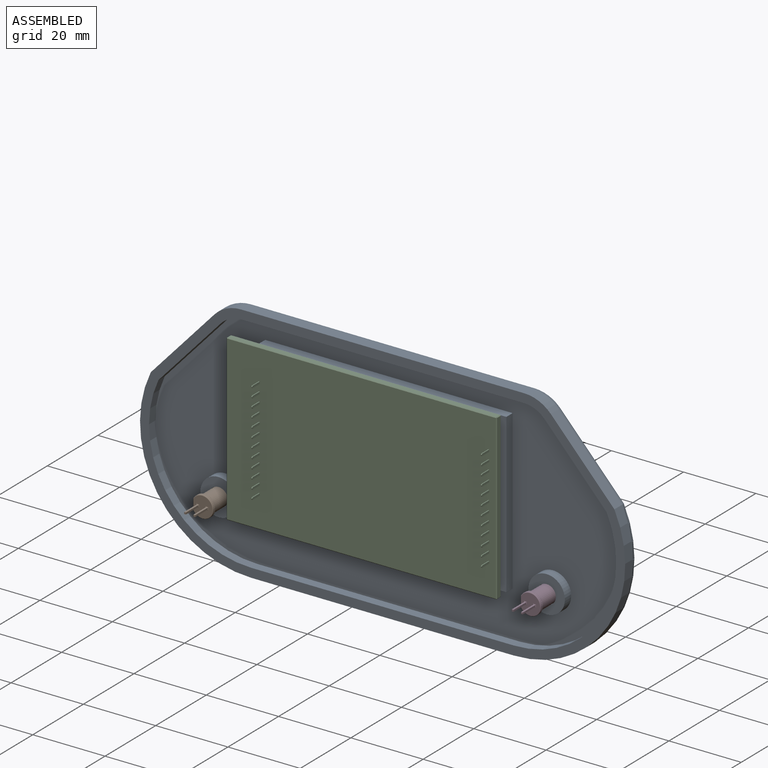
[diagram: assembled view]
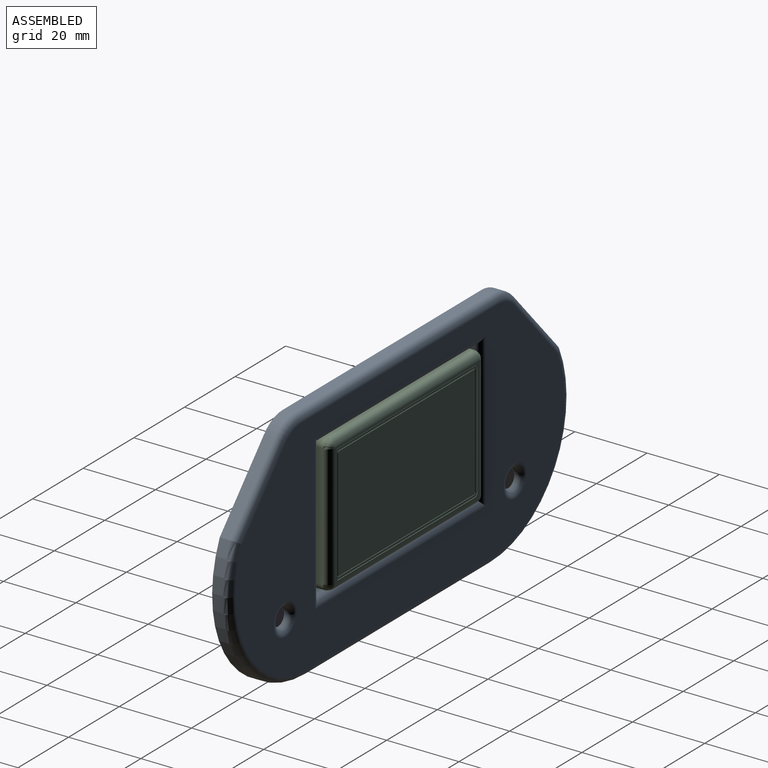
[diagram: assembled view, second angle]
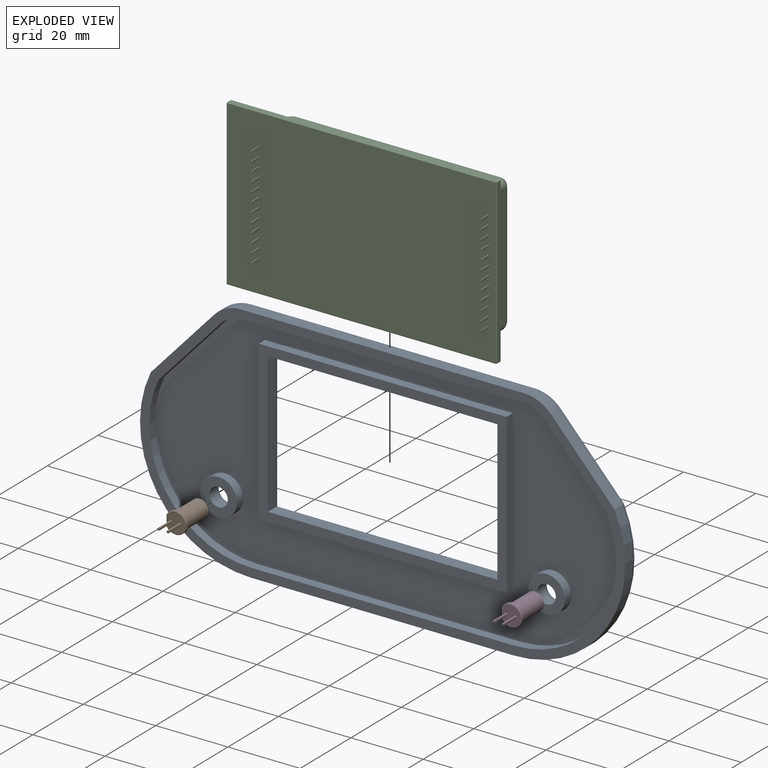
[diagram: exploded view]
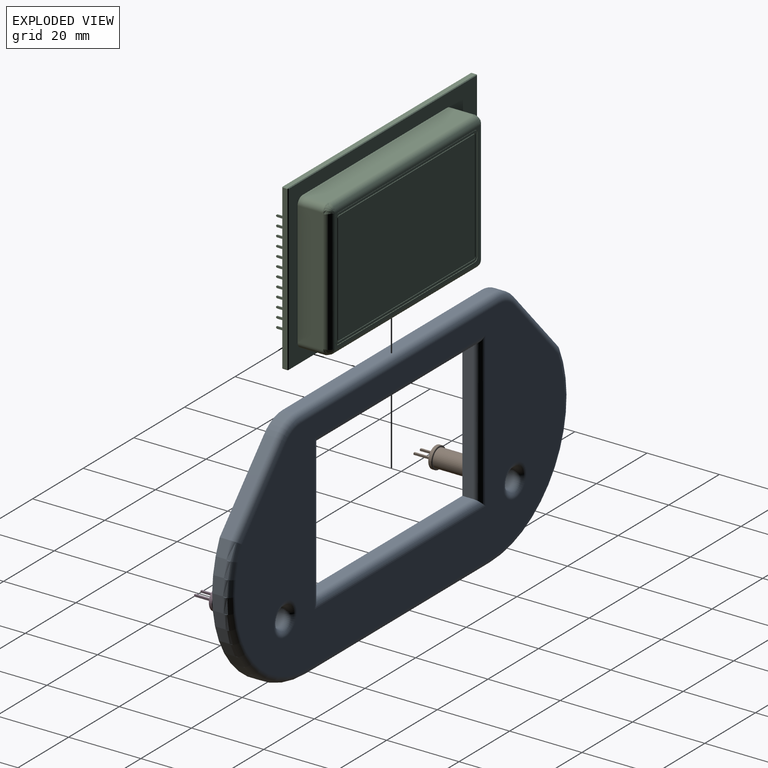
[diagram: exploded view, second angle]
ASSEMBLY  parts=4 mates=3
PART A: 48 faces, bbox 139.3x5x69.7 mm
  f0: plane 134.24x66.35mm, normal (0,-1,0), area 839.3mm2, adj f6,f7,f8,f9,f10,f11,f12,f15
  f1: plane 68.47x43.87mm, normal (0,-1,0), area 536.7mm2, adj f3,f4,f5,f14,f19,f20,f21,f30
  f2: plane 10.1x10.1mm, normal (0,-1,0), area 59.7mm2, adj f16,f32
  f3: plane 63.47x3mm, normal (0,0,1), area 190.4mm2, adj f1,f4,f14,f37
  f4: plane 38.87x3mm, normal (1,0,0), area 116.6mm2, adj f1,f3,f5,f35
  f5: plane 63.47x3mm, normal (0,0,-1), area 190.4mm2, adj f1,f4,f14,f36
  f6: cylinder r=30.75mm len=43.98mm, axis (0,1,0), area 185.9mm2, adj f0,f7,f15,f44
  f7: plane 19.13x17.58mm, normal (0.74,0,0.68), area 78mm2, adj f0,f6,f8,f42
  f8: cylinder r=10mm len=7.36mm, axis (0,1,0), area 24.8mm2, adj f0,f7,f9,f40
  f9: plane 78.36x3mm, normal (0,0,1), area 235.1mm2, adj f0,f8,f10,f39
  f10: cylinder r=10mm len=7.36mm, axis (0,1,0), area 24.8mm2, adj f0,f9,f11,f41
  f11: plane 19.13x17.58mm, normal (-0.74,0,0.68), area 78mm2, adj f0,f10,f12,f43
  f12: cylinder r=30.75mm len=43.98mm, axis (0,1,0), area 185.9mm2, adj f0,f11,f15,f45
  f13: cylinder r=2.55mm len=5.1mm, axis (0,1,0), area 48.1mm2, adj f17,f34
  f14: plane 38.87x3mm, normal (-1,0,0), area 116.6mm2, adj f1,f3,f5,f38
  f15: plane 72.74x3mm, normal (0,0,-1), area 218.2mm2, adj f0,f6,f12,f46
  f16: cylinder r=2.55mm len=5.1mm, axis (0,1,0), area 48.1mm2, adj f2,f47
  f17: plane 10.1x10.1mm, normal (0,-1,0), area 59.7mm2, adj f13,f29
  f18: plane 130.24x62.35mm, normal (0,1,0), area 4179.2mm2, adj f34,f35,f36,f37,f38,f39,f40,f41
  f19: plane 68.47x2.5mm, normal (0,0,-1), area 171.2mm2, adj f1,f20,f30,f33
  f20: plane 43.87x2.5mm, normal (-1,0,0), area 109.7mm2, adj f1,f19,f21,f33
  f21: plane 68.47x2.5mm, normal (0,0,1), area 171.2mm2, adj f1,f20,f30,f33
  f22: cylinder r=28.25mm len=40.07mm, axis (0,1,0), area 141.4mm2, adj f0,f23,f31,f33
  f23: plane 18.85x17.32mm, normal (-0.74,0,-0.68), area 64mm2, adj f0,f22,f24,f33
  f24: cylinder r=7.5mm len=5.52mm, axis (0,1,0), area 15.5mm2, adj f0,f23,f25,f33
  f25: plane 78.36x2.5mm, normal (0,0,-1), area 195.9mm2, adj f0,f24,f26,f33
  f26: cylinder r=7.5mm len=5.52mm, axis (0,1,0), area 15.5mm2, adj f0,f25,f27,f33
  f27: plane 18.85x17.32mm, normal (0.74,0,-0.68), area 64mm2, adj f0,f26,f28,f33
  f28: cylinder r=28.25mm len=40.07mm, axis (0,1,0), area 141.4mm2, adj f0,f27,f31,f33
  f29: cylinder r=5.05mm len=10.1mm, axis (0,1,0), area 79.3mm2, adj f17,f33
  f30: plane 43.87x2.5mm, normal (1,0,0), area 109.7mm2, adj f1,f19,f21,f33
  f31: plane 72.74x2.5mm, normal (0,0,1), area 181.8mm2, adj f0,f22,f28,f33
  f32: cylinder r=5.05mm len=10.1mm, axis (0,1,0), area 79.3mm2, adj f2,f33
  f33: plane 129.24x61.35mm, normal (0,-1,0), area 3873mm2, adj f19,f20,f21,f22,f23,f24,f25,f26
  f34: torus R=4.55mm, axis (0,-1,0), area 64.7mm2, adj f13,f18
  f35: cylinder r=2mm len=42.87mm, axis (0,0,1), area 126.7mm2, adj f4,f18,f36,f37
  f36: cylinder r=2mm len=67.47mm, axis (1,0,0), area 204mm2, adj f5,f18,f35,f38
  f37: cylinder r=2mm len=67.47mm, axis (-1,0,0), area 204mm2, adj f3,f18,f35,f38
  f38: cylinder r=2mm len=42.87mm, axis (0,0,-1), area 126.7mm2, adj f14,f18,f36,f37
  f39: cylinder r=2mm len=78.36mm, axis (-1,0,0), area 246.2mm2, adj f9,f18,f40,f41
  f40: torus R=8mm, axis (0,-1,0), area 24.1mm2, adj f8,f18,f39,f42
  f41: torus R=8mm, axis (0,-1,0), area 24.1mm2, adj f10,f18,f39,f43
  f42: cylinder r=2mm len=20.49mm, axis (-0.68,0,0.74), area 81.3mm2, adj f7,f18,f40,f44
  f43: cylinder r=2mm len=20.49mm, axis (-0.68,0,-0.74), area 81.3mm2, adj f11,f18,f41,f45
  f44: torus R=28.75mm, axis (0,-1,0), area 189.8mm2, adj f6,f18,f42,f46
  f45: torus R=28.75mm, axis (0,-1,0), area 189.8mm2, adj f12,f18,f43,f46
  f46: cylinder r=2mm len=72.74mm, axis (1,0,0), area 228.5mm2, adj f15,f18,f44,f45
  f47: torus R=4.55mm, axis (0,-1,0), area 64.7mm2, adj f16,f18
PART B: 27 faces, bbox 6x6.2x14.6 mm
  f0: plane 5.58x5.29mm, normal (0,0,-1), area 22.4mm2, adj f1,f2,f3,f4,f5,f6,f7,f8
  f1: cylinder r=0.2mm len=0.9mm, axis (1,0,0), area 0.2mm2, adj f0,f2,f3,f11
  f2: cylinder r=0.2mm len=0.9mm, axis (0,1,0), area 0.2mm2, adj f0,f1,f4,f12
  f3: cylinder r=0.2mm len=0.9mm, axis (0,-1,0), area 0.2mm2, adj f0,f1,f4,f13
  f4: cylinder r=0.2mm len=0.9mm, axis (-1,0,0), area 0.2mm2, adj f0,f2,f3,f14
  f5: plane 3.13x1mm, normal (-1,0,0), area 3.1mm2, adj f0,f6,f15,f16,f17
  f6: torus R=2.79mm, axis (0,0,1), area 3.8mm2, adj f0,f5,f15
  f7: cylinder r=0.2mm len=0.9mm, axis (1,0,0), area 0.2mm2, adj f0,f8,f9,f18
  f8: cylinder r=0.2mm len=0.9mm, axis (0,1,0), area 0.2mm2, adj f0,f7,f10,f19
  f9: cylinder r=0.2mm len=0.9mm, axis (0,-1,0), area 0.2mm2, adj f0,f7,f10,f20
  f10: cylinder r=0.2mm len=0.9mm, axis (-1,0,0), area 0.2mm2, adj f0,f8,f9,f21
  f11: plane 4.8x0.5mm, normal (0,1,0), area 2.4mm2, adj f1,f12,f13,f22
  f12: plane 4.8x0.5mm, normal (-1,0,0), area 2.4mm2, adj f2,f11,f14,f22
  f13: plane 4.8x0.5mm, normal (1,0,0), area 2.4mm2, adj f3,f11,f14,f22
  f14: plane 4.8x0.5mm, normal (0,-1,0), area 2.4mm2, adj f4,f12,f13,f22
  f15: cylinder r=2.95mm len=5.9mm, axis (0,0,-1), area 10.4mm2, adj f5,f6,f16
  f16: torus R=2.79mm, axis (0,0,-1), area 3.8mm2, adj f5,f15,f17
  f17: plane 5.58x5.29mm, normal (0,0,1), area 4.3mm2, adj f5,f16,f23
  f18: plane 4.8x0.5mm, normal (0,1,0), area 2.4mm2, adj f7,f19,f20,f24
  f19: plane 4.8x0.5mm, normal (-1,0,0), area 2.4mm2, adj f8,f18,f21,f24
  f20: plane 4.8x0.5mm, normal (1,0,0), area 2.4mm2, adj f9,f18,f21,f24
  f21: plane 4.8x0.5mm, normal (0,-1,0), area 2.4mm2, adj f10,f19,f20,f24
  f22: plane 0.5x0.5mm, normal (0,0,-1), area 0.2mm2, adj f11,f12,f13,f14
  f23: cylinder r=2.5mm len=8.44mm, axis (0,0,-1), area 132.6mm2, adj f17,f25
  f24: plane 0.5x0.5mm, normal (0,0,-1), area 0.2mm2, adj f18,f19,f20,f21
  f25: torus R=2.34mm, axis (0,0,1), area 3.9mm2, adj f23,f26
  f26: plane 4.68x4.68mm, normal (0,0,1), area 17.2mm2, adj f25
PART C: 287 faces, bbox 74.8x45.6x13.8 mm
  f0: plane 74.4x1.4mm, normal (0,1,0), area 104.2mm2, adj f1,f2,f3,f4
  f1: plane 74.6x0.2mm, normal (0,0.71,-0.71), area 21.1mm2, adj f0,f2,f3,f5,f6,f7
  f2: plane 1.6x0.2mm, normal (-0.71,0.71,0), area 0.4mm2, adj f0,f1,f4,f5,f8,f9
  f3: plane 1.6x0.2mm, normal (0.71,0.71,0), area 0.4mm2, adj f0,f1,f4,f7,f10,f11
  f4: plane 74.6x0.2mm, normal (0,0.71,0.71), area 21.1mm2, adj f0,f2,f3,f9,f11,f12
  f5: plane 45.4x0.2mm, normal (-0.71,0,-0.71), area 12.8mm2, adj f1,f2,f6,f8,f13,f14
  f6: plane 74.4x45.2mm, normal (0,0,-1), area 3359.3mm2, adj f1,f5,f7,f13,f15,f16,f17,f18
  f7: plane 45.4x0.2mm, normal (0.71,0,-0.71), area 12.8mm2, adj f1,f3,f6,f10,f13,f111
  f8: plane 45.2x1.4mm, normal (-1,0,0), area 63.3mm2, adj f2,f5,f9,f14
  f9: plane 45.4x0.2mm, normal (-0.71,0,0.71), area 12.8mm2, adj f2,f4,f8,f12,f14,f112
  f10: plane 45.2x1.4mm, normal (1,0,0), area 63.3mm2, adj f3,f7,f11,f111
  f11: plane 45.4x0.2mm, normal (0.71,0,0.71), area 12.8mm2, adj f3,f4,f10,f12,f111,f112
  f12: plane 74.4x45.2mm, normal (0,0,1), area 1048mm2, adj f4,f9,f11,f112,f113,f114,f115,f116
  f13: plane 74.6x0.2mm, normal (0,-0.71,-0.71), area 21.1mm2, adj f5,f6,f7,f14,f111,f121
  f14: plane 1.6x0.2mm, normal (-0.71,-0.71,0), area 0.4mm2, adj f5,f8,f9,f13,f112,f121
  f15: plane 3x0.6mm, normal (-1,0,0), area 1.8mm2, adj f6,f16,f18,f122,f123,f124
  f16: plane 2.78x0.25mm, normal (0,-1,0), area 0.7mm2, adj f6,f15,f17,f122
  f17: plane 3x0.6mm, normal (1,0,0), area 1.8mm2, adj f6,f16,f18,f122,f123,f124
  f18: plane 2.78x0.25mm, normal (0,1,0), area 0.7mm2, adj f6,f15,f17,f124
  f19: plane 3x0.6mm, normal (1,0,0), area 1.8mm2, adj f6,f20,f22,f125,f126,f127
  f20: plane 2.78x0.25mm, normal (0,1,0), area 0.7mm2, adj f6,f19,f21,f125
  f21: plane 3x0.6mm, normal (-1,0,0), area 1.8mm2, adj f6,f20,f22,f125,f126,f127
  f22: plane 2.78x0.25mm, normal (0,-1,0), area 0.7mm2, adj f6,f19,f21,f127
  f23: plane 3x0.6mm, normal (-1,0,0), area 1.8mm2, adj f6,f24,f26,f128,f129,f130
  f24: plane 2.78x0.25mm, normal (0,-1,0), area 0.7mm2, adj f6,f23,f25,f128
  f25: plane 3x0.6mm, normal (1,0,0), area 1.8mm2, adj f6,f24,f26,f128,f129,f130
  f26: plane 2.78x0.25mm, normal (0,1,0), area 0.7mm2, adj f6,f23,f25,f130
  f27: plane 3x0.6mm, normal (-1,0,0), area 1.8mm2, adj f6,f28,f30,f131,f132,f133
  f28: plane 2.78x0.25mm, normal (0,-1,0), area 0.7mm2, adj f6,f27,f29,f131
  f29: plane 3x0.6mm, normal (1,0,0), area 1.8mm2, adj f6,f28,f30,f131,f132,f133
  f30: plane 2.78x0.25mm, normal (0,1,0), area 0.7mm2, adj f6,f27,f29,f133
  f31: plane 3x0.6mm, normal (-1,0,0), area 1.8mm2, adj f6,f32,f34,f134,f135,f136
  f32: plane 2.78x0.25mm, normal (0,-1,0), area 0.7mm2, adj f6,f31,f33,f134
  f33: plane 3x0.6mm, normal (1,0,0), area 1.8mm2, adj f6,f32,f34,f134,f135,f136
  f34: plane 2.78x0.25mm, normal (0,1,0), area 0.7mm2, adj f6,f31,f33,f136
  f35: plane 3x0.6mm, normal (1,0,0), area 1.8mm2, adj f6,f36,f38,f137,f138,f139
  f36: plane 2.78x0.25mm, normal (0,1,0), area 0.7mm2, adj f6,f35,f37,f137
  f37: plane 3x0.6mm, normal (-1,0,0), area 1.8mm2, adj f6,f36,f38,f137,f138,f139
  f38: plane 2.78x0.25mm, normal (0,-1,0), area 0.7mm2, adj f6,f35,f37,f139
  f39: plane 2.78x0.25mm, normal (0,-1,0), area 0.7mm2, adj f6,f40,f42,f140
  f40: plane 3x0.6mm, normal (1,0,0), area 1.8mm2, adj f6,f39,f41,f140,f141,f142
  f41: plane 2.78x0.25mm, normal (0,1,0), area 0.7mm2, adj f6,f40,f42,f141
  f42: plane 3x0.6mm, normal (-1,0,0), area 1.8mm2, adj f6,f39,f41,f140,f141,f142
  f43: plane 3x0.6mm, normal (1,0,0), area 1.8mm2, adj f6,f44,f46,f143,f144,f145
  f44: plane 2.78x0.25mm, normal (0,1,0), area 0.7mm2, adj f6,f43,f45,f143
  f45: plane 3x0.6mm, normal (-1,0,0), area 1.8mm2, adj f6,f44,f46,f143,f144,f145
  f46: plane 2.78x0.25mm, normal (0,-1,0), area 0.7mm2, adj f6,f43,f45,f145
  f47: plane 3x0.6mm, normal (-1,0,0), area 1.8mm2, adj f6,f48,f50,f146,f147,f148
  f48: plane 2.78x0.25mm, normal (0,-1,0), area 0.7mm2, adj f6,f47,f49,f146
  f49: plane 3x0.6mm, normal (1,0,0), area 1.8mm2, adj f6,f48,f50,f146,f147,f148
  f50: plane 2.78x0.25mm, normal (0,1,0), area 0.7mm2, adj f6,f47,f49,f148
  f51: plane 3x0.6mm, normal (-1,0,0), area 1.8mm2, adj f6,f52,f54,f149,f150,f151
  f52: plane 2.78x0.25mm, normal (0,-1,0), area 0.7mm2, adj f6,f51,f53,f149
  f53: plane 3x0.6mm, normal (1,0,0), area 1.8mm2, adj f6,f52,f54,f149,f150,f151
  f54: plane 2.78x0.25mm, normal (0,1,0), area 0.7mm2, adj f6,f51,f53,f151
  f55: plane 3x0.6mm, normal (1,0,0), area 1.8mm2, adj f6,f56,f58,f152,f153,f154
  f56: plane 2.78x0.25mm, normal (0,1,0), area 0.7mm2, adj f6,f55,f57,f152
  f57: plane 3x0.6mm, normal (-1,0,0), area 1.8mm2, adj f6,f56,f58,f152,f153,f154
  f58: plane 2.78x0.25mm, normal (0,-1,0), area 0.7mm2, adj f6,f55,f57,f154
  f59: plane 3x0.6mm, normal (-1,0,0), area 1.8mm2, adj f6,f60,f62,f155,f156,f157
  f60: plane 2.78x0.25mm, normal (0,-1,0), area 0.7mm2, adj f6,f59,f61,f155
  f61: plane 3x0.6mm, normal (1,0,0), area 1.8mm2, adj f6,f60,f62,f155,f156,f157
  f62: plane 2.78x0.25mm, normal (0,1,0), area 0.7mm2, adj f6,f59,f61,f157
  f63: plane 3x0.6mm, normal (-1,0,0), area 1.8mm2, adj f6,f64,f66,f158,f159,f160
  f64: plane 2.78x0.25mm, normal (0,-1,0), area 0.7mm2, adj f6,f63,f65,f158
  f65: plane 3x0.6mm, normal (1,0,0), area 1.8mm2, adj f6,f64,f66,f158,f159,f160
  f66: plane 2.78x0.25mm, normal (0,1,0), area 0.7mm2, adj f6,f63,f65,f160
  f67: plane 3x0.6mm, normal (-1,0,0), area 1.8mm2, adj f6,f68,f70,f161,f162,f163
  f68: plane 2.78x0.25mm, normal (0,-1,0), area 0.7mm2, adj f6,f67,f69,f161
  f69: plane 3x0.6mm, normal (1,0,0), area 1.8mm2, adj f6,f68,f70,f161,f162,f163
  f70: plane 2.78x0.25mm, normal (0,1,0), area 0.7mm2, adj f6,f67,f69,f163
  f71: plane 3x0.6mm, normal (1,0,0), area 1.8mm2, adj f6,f72,f74,f164,f165,f166
  f72: plane 2.78x0.25mm, normal (0,1,0), area 0.7mm2, adj f6,f71,f73,f164
  f73: plane 3x0.6mm, normal (-1,0,0), area 1.8mm2, adj f6,f72,f74,f164,f165,f166
  f74: plane 2.78x0.25mm, normal (0,-1,0), area 0.7mm2, adj f6,f71,f73,f166
  f75: plane 2.78x0.25mm, normal (0,-1,0), area 0.7mm2, adj f6,f76,f78,f167
  f76: plane 3x0.6mm, normal (1,0,0), area 1.8mm2, adj f6,f75,f77,f167,f168,f169
  f77: plane 2.78x0.25mm, normal (0,1,0), area 0.7mm2, adj f6,f76,f78,f168
  f78: plane 3x0.6mm, normal (-1,0,0), area 1.8mm2, adj f6,f75,f77,f167,f168,f169
  f79: plane 3x0.6mm, normal (-1,0,0), area 1.8mm2, adj f6,f80,f82,f170,f171,f172
  f80: plane 2.78x0.25mm, normal (0,-1,0), area 0.7mm2, adj f6,f79,f81,f170
  f81: plane 3x0.6mm, normal (1,0,0), area 1.8mm2, adj f6,f80,f82,f170,f171,f172
  f82: plane 2.78x0.25mm, normal (0,1,0), area 0.7mm2, adj f6,f79,f81,f172
  f83: plane 3x0.6mm, normal (-1,0,0), area 1.8mm2, adj f6,f84,f86,f173,f174,f175
  f84: plane 2.78x0.25mm, normal (0,-1,0), area 0.7mm2, adj f6,f83,f85,f173
  f85: plane 3x0.6mm, normal (1,0,0), area 1.8mm2, adj f6,f84,f86,f173,f174,f175
  f86: plane 2.78x0.25mm, normal (0,1,0), area 0.7mm2, adj f6,f83,f85,f175
  f87: plane 2.78x0.25mm, normal (0,-1,0), area 0.7mm2, adj f6,f88,f90,f176
  f88: plane 3x0.6mm, normal (1,0,0), area 1.8mm2, adj f6,f87,f89,f176,f177,f178
  f89: plane 2.78x0.25mm, normal (0,1,0), area 0.7mm2, adj f6,f88,f90,f177
  f90: plane 3x0.6mm, normal (-1,0,0), area 1.8mm2, adj f6,f87,f89,f176,f177,f178
  f91: plane 3x0.6mm, normal (-1,0,0), area 1.8mm2, adj f6,f92,f94,f179,f180,f181
  f92: plane 2.78x0.25mm, normal (0,-1,0), area 0.7mm2, adj f6,f91,f93,f179
  f93: plane 3x0.6mm, normal (1,0,0), area 1.8mm2, adj f6,f92,f94,f179,f180,f181
  f94: plane 2.78x0.25mm, normal (0,1,0), area 0.7mm2, adj f6,f91,f93,f181
  f95: plane 2.78x0.25mm, normal (0,-1,0), area 0.7mm2, adj f6,f96,f98,f182
  f96: plane 3x0.6mm, normal (1,0,0), area 1.8mm2, adj f6,f95,f97,f182,f183,f184
  f97: plane 2.78x0.25mm, normal (0,1,0), area 0.7mm2, adj f6,f96,f98,f183
  f98: plane 3x0.6mm, normal (-1,0,0), area 1.8mm2, adj f6,f95,f97,f182,f183,f184
  f99: plane 3x0.6mm, normal (1,0,0), area 1.8mm2, adj f6,f100,f102,f185,f186,f187
  f100: plane 2.78x0.25mm, normal (0,1,0), area 0.7mm2, adj f6,f99,f101,f185
  f101: plane 3x0.6mm, normal (-1,0,0), area 1.8mm2, adj f6,f100,f102,f185,f186,f187
  f102: plane 2.78x0.25mm, normal (0,-1,0), area 0.7mm2, adj f6,f99,f101,f187
  f103: plane 2.78x0.25mm, normal (0,-1,0), area 0.7mm2, adj f6,f104,f106,f188
  f104: plane 3x0.6mm, normal (1,0,0), area 1.8mm2, adj f6,f103,f105,f188,f189,f190
  f105: plane 2.78x0.25mm, normal (0,1,0), area 0.7mm2, adj f6,f104,f106,f189
  f106: plane 3x0.6mm, normal (-1,0,0), area 1.8mm2, adj f6,f103,f105,f188,f189,f190
  f107: plane 3x0.6mm, normal (1,0,0), area 1.8mm2, adj f6,f108,f110,f191,f192,f193
  f108: plane 2.78x0.25mm, normal (0,1,0), area 0.7mm2, adj f6,f107,f109,f191
  f109: plane 3x0.6mm, normal (-1,0,0), area 1.8mm2, adj f6,f108,f110,f191,f192,f193
  f110: plane 2.78x0.25mm, normal (0,-1,0), area 0.7mm2, adj f6,f107,f109,f193
  f111: plane 1.6x0.2mm, normal (0.71,-0.71,0), area 0.4mm2, adj f7,f10,f11,f13,f112,f121
  f112: plane 74.6x0.2mm, normal (0,-0.71,0.71), area 21.1mm2, adj f9,f11,f12,f14,f111,f121
  f113: plane 57.2x7mm, normal (0,-1,0), area 400.3mm2, adj f12,f114,f120,f194
  f114: cylinder r=1.9mm len=7mm, axis (0,0,1), area 20.9mm2, adj f12,f113,f115,f195
  f115: plane 34.2x7mm, normal (1,0,0), area 239.3mm2, adj f12,f114,f116,f196
  f116: cylinder r=1.9mm len=7mm, axis (0,0,1), area 20.9mm2, adj f12,f115,f117,f197
  f117: plane 57.2x7mm, normal (0,1,0), area 400.3mm2, adj f12,f116,f118,f198
  f118: cylinder r=1.9mm len=7mm, axis (0,0,1), area 20.9mm2, adj f12,f117,f119,f199
  f119: plane 34.2x7mm, normal (-1,0,0), area 239.3mm2, adj f12,f118,f120,f200
  f120: cylinder r=1.9mm len=7mm, axis (0,0,1), area 20.9mm2, adj f12,f113,f119,f201
  f121: plane 74.4x1.4mm, normal (0,-1,0), area 104.2mm2, adj f13,f14,f111,f112
  f122: plane 0.25x0.22mm, normal (0,-0.71,-0.71), area 0.1mm2, adj f15,f16,f17,f123
  f123: plane 0.25x0.16mm, normal (0,0,-1), area 0mm2, adj f15,f17,f122,f124
  f124: plane 0.25x0.22mm, normal (0,0.71,-0.71), area 0.1mm2, adj f15,f17,f18,f123
  f125: plane 0.25x0.22mm, normal (0,0.71,-0.71), area 0.1mm2, adj f19,f20,f21,f126
  f126: plane 0.25x0.16mm, normal (0,0,-1), area 0mm2, adj f19,f21,f125,f127
  f127: plane 0.25x0.22mm, normal (0,-0.71,-0.71), area 0.1mm2, adj f19,f21,f22,f126
  f128: plane 0.25x0.22mm, normal (0,-0.71,-0.71), area 0.1mm2, adj f23,f24,f25,f129
  f129: plane 0.25x0.16mm, normal (0,0,-1), area 0mm2, adj f23,f25,f128,f130
  f130: plane 0.25x0.22mm, normal (0,0.71,-0.71), area 0.1mm2, adj f23,f25,f26,f129
  f131: plane 0.25x0.22mm, normal (0,-0.71,-0.71), area 0.1mm2, adj f27,f28,f29,f132
  f132: plane 0.25x0.16mm, normal (0,0,-1), area 0mm2, adj f27,f29,f131,f133
  f133: plane 0.25x0.22mm, normal (0,0.71,-0.71), area 0.1mm2, adj f27,f29,f30,f132
  f134: plane 0.25x0.22mm, normal (0,-0.71,-0.71), area 0.1mm2, adj f31,f32,f33,f135
  f135: plane 0.25x0.16mm, normal (0,0,-1), area 0mm2, adj f31,f33,f134,f136
  f136: plane 0.25x0.22mm, normal (0,0.71,-0.71), area 0.1mm2, adj f31,f33,f34,f135
  f137: plane 0.25x0.22mm, normal (0,0.71,-0.71), area 0.1mm2, adj f35,f36,f37,f138
  f138: plane 0.25x0.16mm, normal (0,0,-1), area 0mm2, adj f35,f37,f137,f139
  f139: plane 0.25x0.22mm, normal (0,-0.71,-0.71), area 0.1mm2, adj f35,f37,f38,f138
  f140: plane 0.25x0.22mm, normal (0,-0.71,-0.71), area 0.1mm2, adj f39,f40,f42,f142
  f141: plane 0.25x0.22mm, normal (0,0.71,-0.71), area 0.1mm2, adj f40,f41,f42,f142
  f142: plane 0.25x0.16mm, normal (0,0,-1), area 0mm2, adj f40,f42,f140,f141
  f143: plane 0.25x0.22mm, normal (0,0.71,-0.71), area 0.1mm2, adj f43,f44,f45,f144
  f144: plane 0.25x0.16mm, normal (0,0,-1), area 0mm2, adj f43,f45,f143,f145
  f145: plane 0.25x0.22mm, normal (0,-0.71,-0.71), area 0.1mm2, adj f43,f45,f46,f144
  f146: plane 0.25x0.22mm, normal (0,-0.71,-0.71), area 0.1mm2, adj f47,f48,f49,f147
  f147: plane 0.25x0.16mm, normal (0,0,-1), area 0mm2, adj f47,f49,f146,f148
  f148: plane 0.25x0.22mm, normal (0,0.71,-0.71), area 0.1mm2, adj f47,f49,f50,f147
  f149: plane 0.25x0.22mm, normal (0,-0.71,-0.71), area 0.1mm2, adj f51,f52,f53,f150
  f150: plane 0.25x0.16mm, normal (0,0,-1), area 0mm2, adj f51,f53,f149,f151
  f151: plane 0.25x0.22mm, normal (0,0.71,-0.71), area 0.1mm2, adj f51,f53,f54,f150
  f152: plane 0.25x0.22mm, normal (0,0.71,-0.71), area 0.1mm2, adj f55,f56,f57,f153
  f153: plane 0.25x0.16mm, normal (0,0,-1), area 0mm2, adj f55,f57,f152,f154
  f154: plane 0.25x0.22mm, normal (0,-0.71,-0.71), area 0.1mm2, adj f55,f57,f58,f153
  f155: plane 0.25x0.22mm, normal (0,-0.71,-0.71), area 0.1mm2, adj f59,f60,f61,f156
  f156: plane 0.25x0.16mm, normal (0,0,-1), area 0mm2, adj f59,f61,f155,f157
  f157: plane 0.25x0.22mm, normal (0,0.71,-0.71), area 0.1mm2, adj f59,f61,f62,f156
  f158: plane 0.25x0.22mm, normal (0,-0.71,-0.71), area 0.1mm2, adj f63,f64,f65,f159
  f159: plane 0.25x0.16mm, normal (0,0,-1), area 0mm2, adj f63,f65,f158,f160
  f160: plane 0.25x0.22mm, normal (0,0.71,-0.71), area 0.1mm2, adj f63,f65,f66,f159
  f161: plane 0.25x0.22mm, normal (0,-0.71,-0.71), area 0.1mm2, adj f67,f68,f69,f162
  f162: plane 0.25x0.16mm, normal (0,0,-1), area 0mm2, adj f67,f69,f161,f163
  f163: plane 0.25x0.22mm, normal (0,0.71,-0.71), area 0.1mm2, adj f67,f69,f70,f162
  f164: plane 0.25x0.22mm, normal (0,0.71,-0.71), area 0.1mm2, adj f71,f72,f73,f165
  f165: plane 0.25x0.16mm, normal (0,0,-1), area 0mm2, adj f71,f73,f164,f166
  f166: plane 0.25x0.22mm, normal (0,-0.71,-0.71), area 0.1mm2, adj f71,f73,f74,f165
  f167: plane 0.25x0.22mm, normal (0,-0.71,-0.71), area 0.1mm2, adj f75,f76,f78,f169
  f168: plane 0.25x0.22mm, normal (0,0.71,-0.71), area 0.1mm2, adj f76,f77,f78,f169
  f169: plane 0.25x0.16mm, normal (0,0,-1), area 0mm2, adj f76,f78,f167,f168
  f170: plane 0.25x0.22mm, normal (0,-0.71,-0.71), area 0.1mm2, adj f79,f80,f81,f171
  f171: plane 0.25x0.16mm, normal (0,0,-1), area 0mm2, adj f79,f81,f170,f172
  f172: plane 0.25x0.22mm, normal (0,0.71,-0.71), area 0.1mm2, adj f79,f81,f82,f171
  f173: plane 0.25x0.22mm, normal (0,-0.71,-0.71), area 0.1mm2, adj f83,f84,f85,f174
  f174: plane 0.25x0.16mm, normal (0,0,-1), area 0mm2, adj f83,f85,f173,f175
  f175: plane 0.25x0.22mm, normal (0,0.71,-0.71), area 0.1mm2, adj f83,f85,f86,f174
  f176: plane 0.25x0.22mm, normal (0,-0.71,-0.71), area 0.1mm2, adj f87,f88,f90,f178
  f177: plane 0.25x0.22mm, normal (0,0.71,-0.71), area 0.1mm2, adj f88,f89,f90,f178
  f178: plane 0.25x0.16mm, normal (0,0,-1), area 0mm2, adj f88,f90,f176,f177
  f179: plane 0.25x0.22mm, normal (0,-0.71,-0.71), area 0.1mm2, adj f91,f92,f93,f180
  f180: plane 0.25x0.16mm, normal (0,0,-1), area 0mm2, adj f91,f93,f179,f181
  f181: plane 0.25x0.22mm, normal (0,0.71,-0.71), area 0.1mm2, adj f91,f93,f94,f180
  f182: plane 0.25x0.22mm, normal (0,-0.71,-0.71), area 0.1mm2, adj f95,f96,f98,f184
  f183: plane 0.25x0.22mm, normal (0,0.71,-0.71), area 0.1mm2, adj f96,f97,f98,f184
  f184: plane 0.25x0.16mm, normal (0,0,-1), area 0mm2, adj f96,f98,f182,f183
  f185: plane 0.25x0.22mm, normal (0,0.71,-0.71), area 0.1mm2, adj f99,f100,f101,f186
  f186: plane 0.25x0.16mm, normal (0,0,-1), area 0mm2, adj f99,f101,f185,f187
  f187: plane 0.25x0.22mm, normal (0,-0.71,-0.71), area 0.1mm2, adj f99,f101,f102,f186
  f188: plane 0.25x0.22mm, normal (0,-0.71,-0.71), area 0.1mm2, adj f103,f104,f106,f190
  f189: plane 0.25x0.22mm, normal (0,0.71,-0.71), area 0.1mm2, adj f104,f105,f106,f190
  f190: plane 0.25x0.16mm, normal (0,0,-1), area 0mm2, adj f104,f106,f188,f189
  f191: plane 0.25x0.22mm, normal (0,0.71,-0.71), area 0.1mm2, adj f107,f108,f109,f192
  f192: plane 0.25x0.16mm, normal (0,0,-1), area 0mm2, adj f107,f109,f191,f193
  f193: plane 0.25x0.22mm, normal (0,-0.71,-0.71), area 0.1mm2, adj f107,f109,f110,f192
  f194: cylinder r=2mm len=57.2mm, axis (-1,0,0), area 179.4mm2, adj f113,f195,f201,f202
  f195: bspline ~2.12x2.12mm, area 6.2mm2, adj f114,f194,f196
  f196: cylinder r=2mm len=34.2mm, axis (0,-1,0), area 107.1mm2, adj f115,f195,f197,f202
  f197: bspline ~2.12x2.12mm, area 6.2mm2, adj f116,f196,f198
  f198: cylinder r=2mm len=57.2mm, axis (1,0,0), area 179.4mm2, adj f117,f197,f199,f202
  f199: bspline ~2.12x2.12mm, area 6.2mm2, adj f118,f198,f200
  f200: cylinder r=2mm len=34.2mm, axis (0,1,0), area 107.1mm2, adj f119,f199,f201,f202
  f201: bspline ~2.12x2.12mm, area 6.2mm2, adj f120,f194,f200
  f202: plane 57x34mm, normal (0,0,1), area 90.9mm2, adj f194,f196,f198,f200,f203,f204,f205,f206
  f203: plane 54x0.5mm, normal (0,-1,0), area 27mm2, adj f202,f204,f205,f211
  f204: cylinder r=1mm len=1mm, axis (0,0,-1), area 0.8mm2, adj f202,f203,f206,f211
  f205: cylinder r=1mm len=1mm, axis (0,0,-1), area 0.8mm2, adj f202,f203,f207,f211
  f206: plane 31x0.5mm, normal (1,0,0), area 15.5mm2, adj f202,f204,f208,f211
  f207: plane 31x0.5mm, normal (-1,0,0), area 15.5mm2, adj f202,f205,f209,f211
  f208: cylinder r=1mm len=1mm, axis (0,0,-1), area 0.8mm2, adj f202,f206,f210,f211
  f209: cylinder r=1mm len=1mm, axis (0,0,-1), area 0.8mm2, adj f202,f207,f210,f211
  f210: plane 54x0.5mm, normal (0,1,0), area 27mm2, adj f202,f208,f209,f211
  f211: plane 56x33mm, normal (0,0,1), area 11.1mm2, adj f203,f204,f205,f206,f207,f208,f209,f210
  f212: cone r=1mm half-angle=45deg, axis (0,0,1), area 0.1mm2, adj f211,f213,f219,f220
  f213: plane 31x0.06mm, normal (-0.71,0,-0.71), area 2.7mm2, adj f211,f212,f214,f221
  f214: cone r=1mm half-angle=45deg, axis (0,0,1), area 0.1mm2, adj f211,f213,f215,f222
  f215: plane 54x0.06mm, normal (0,-0.71,-0.71), area 4.7mm2, adj f211,f214,f216,f223
  f216: cone r=1mm half-angle=45deg, axis (0,0,1), area 0.1mm2, adj f211,f215,f217,f224
  f217: plane 31x0.06mm, normal (0.71,0,-0.71), area 2.7mm2, adj f211,f216,f218,f225
  f218: cone r=1mm half-angle=45deg, axis (0,0,1), area 0.1mm2, adj f211,f217,f219,f226
  f219: plane 54x0.06mm, normal (0,0.71,-0.71), area 4.7mm2, adj f211,f212,f218,f227
  f220: cylinder r=1mm len=1mm, axis (0,0,1), area 0.5mm2, adj f212,f221,f227,f228
  f221: plane 31x0.3mm, normal (-1,0,0), area 9.3mm2, adj f213,f220,f222,f229
  f222: cylinder r=1mm len=1mm, axis (0,0,1), area 0.5mm2, adj f214,f221,f223,f230
  f223: plane 54x0.3mm, normal (0,-1,0), area 16.2mm2, adj f215,f222,f224,f231
  f224: cylinder r=1mm len=1mm, axis (0,0,1), area 0.5mm2, adj f216,f223,f225,f232
  f225: plane 31x0.3mm, normal (1,0,0), area 9.3mm2, adj f217,f224,f226,f233
  f226: cylinder r=1mm len=1mm, axis (0,0,1), area 0.5mm2, adj f218,f225,f227,f234
  f227: plane 54x0.3mm, normal (0,1,0), area 16.2mm2, adj f219,f220,f226,f235
  f228: cone r=1mm half-angle=45deg, axis (0,0,-1), area 0.2mm2, adj f220,f229,f235,f236
  f229: plane 31x0.1mm, normal (-0.71,0,0.71), area 4.4mm2, adj f221,f228,f230,f236
  f230: cone r=1mm half-angle=45deg, axis (0,0,-1), area 0.2mm2, adj f222,f229,f231,f236
  f231: plane 54x0.1mm, normal (0,-0.71,0.71), area 7.6mm2, adj f223,f230,f232,f236
  f232: cone r=1mm half-angle=45deg, axis (0,0,-1), area 0.2mm2, adj f224,f231,f233,f236
  f233: plane 31x0.1mm, normal (0.71,0,0.71), area 4.4mm2, adj f225,f232,f234,f236
  f234: cone r=1mm half-angle=45deg, axis (0,0,-1), area 0.2mm2, adj f226,f233,f235,f236
  f235: plane 54x0.1mm, normal (0,0.71,0.71), area 7.6mm2, adj f227,f228,f234,f236
  f236: plane 55.8x32.8mm, normal (0,0,1), area 104.5mm2, adj f228,f229,f230,f231,f232,f233,f234,f235
  f237: plane 53.4x0.1mm, normal (0,0.71,0.71), area 7.6mm2, adj f236,f238,f239,f245
  f238: cone r=0.5mm half-angle=45deg, axis (0,0,1), area 0.1mm2, adj f236,f237,f240,f246
  f239: cone r=0.5mm half-angle=45deg, axis (0,0,1), area 0.1mm2, adj f236,f237,f241,f247
  f240: plane 30.4x0.1mm, normal (-0.71,0,0.71), area 4.3mm2, adj f236,f238,f242,f248
  f241: plane 30.4x0.1mm, normal (0.71,0,0.71), area 4.3mm2, adj f236,f239,f243,f249
  f242: cone r=0.5mm half-angle=45deg, axis (0,0,1), area 0.1mm2, adj f236,f240,f244,f250
  f243: cone r=0.5mm half-angle=45deg, axis (0,0,1), area 0.1mm2, adj f236,f241,f244,f251
  f244: plane 53.4x0.1mm, normal (0,-0.71,0.71), area 7.6mm2, adj f236,f242,f243,f252
  f245: plane 53.4x0.3mm, normal (0,1,0), area 16mm2, adj f237,f246,f247,f253
  f246: cylinder r=0.5mm len=0.5mm, axis (0,0,-1), area 0.2mm2, adj f238,f245,f248,f254
  f247: cylinder r=0.5mm len=0.5mm, axis (0,0,-1), area 0.2mm2, adj f239,f245,f249,f255
  f248: plane 30.4x0.3mm, normal (-1,0,0), area 9.1mm2, adj f240,f246,f250,f256
  f249: plane 30.4x0.3mm, normal (1,0,0), area 9.1mm2, adj f241,f247,f251,f257
  f250: cylinder r=0.5mm len=0.5mm, axis (0,0,-1), area 0.2mm2, adj f242,f248,f252,f258
  f251: cylinder r=0.5mm len=0.5mm, axis (0,0,-1), area 0.2mm2, adj f243,f249,f252,f259
  f252: plane 53.4x0.3mm, normal (0,-1,0), area 16mm2, adj f244,f250,f251,f260
  f253: plane 53.4x0.06mm, normal (0,0.71,-0.71), area 4.7mm2, adj f245,f254,f255,f261
  f254: cone r=0.5mm half-angle=45deg, axis (0,0,-1), area 0.1mm2, adj f246,f253,f256,f261
  f255: cone r=0.5mm half-angle=45deg, axis (0,0,-1), area 0.1mm2, adj f247,f253,f257,f261
  f256: plane 30.4x0.06mm, normal (-0.71,0,-0.71), area 2.7mm2, adj f248,f254,f258,f261
  f257: plane 30.4x0.06mm, normal (0.71,0,-0.71), area 2.7mm2, adj f249,f255,f259,f261
  f258: cone r=0.5mm half-angle=45deg, axis (0,0,-1), area 0.1mm2, adj f250,f256,f260,f261
  f259: cone r=0.5mm half-angle=45deg, axis (0,0,-1), area 0.1mm2, adj f251,f257,f260,f261
  f260: plane 53.4x0.06mm, normal (0,-0.71,-0.71), area 4.7mm2, adj f252,f258,f259,f261
  f261: plane 54.52x31.52mm, normal (0,0,1), area 11.1mm2, adj f253,f254,f255,f256,f257,f258,f259,f260
  f262: plane 30.4x0mm, normal (-0.71,0,-0.71), area 0.1mm2, adj f261,f263,f269,f270
  f263: cone r=0.5mm half-angle=45deg, axis (0,0,1), area 0mm2, adj f261,f262,f264,f271
  f264: plane 53.4x0mm, normal (0,-0.71,-0.71), area 0.2mm2, adj f261,f263,f265,f272
  f265: cone r=0.5mm half-angle=45deg, axis (0,0,1), area 0mm2, adj f261,f264,f266,f273
  f266: plane 30.4x0mm, normal (0.71,0,-0.71), area 0.1mm2, adj f261,f265,f267,f274
  f267: cone r=0.5mm half-angle=45deg, axis (0,0,1), area 0mm2, adj f261,f266,f268,f275
  f268: plane 53.4x0mm, normal (0,0.71,-0.71), area 0.2mm2, adj f261,f267,f269,f276
  f269: cone r=0.5mm half-angle=45deg, axis (0,0,1), area 0mm2, adj f261,f262,f268,f277
  f270: plane 30.4x0.38mm, normal (-1,0,0), area 11.6mm2, adj f262,f271,f277,f278
  f271: cylinder r=0.5mm len=0.5mm, axis (0,0,1), area 0.3mm2, adj f263,f270,f272,f279
  f272: plane 53.4x0.38mm, normal (0,-1,0), area 20.3mm2, adj f264,f271,f273,f280
  f273: cylinder r=0.5mm len=0.5mm, axis (0,0,1), area 0.3mm2, adj f265,f272,f274,f281
  f274: plane 30.4x0.38mm, normal (1,0,0), area 11.6mm2, adj f266,f273,f275,f282
  f275: cylinder r=0.5mm len=0.5mm, axis (0,0,1), area 0.3mm2, adj f267,f274,f276,f283
  f276: plane 53.4x0.38mm, normal (0,1,0), area 20.3mm2, adj f268,f275,f277,f284
  f277: cylinder r=0.5mm len=0.5mm, axis (0,0,1), area 0.3mm2, adj f269,f270,f276,f285
  f278: plane 30.4x0.1mm, normal (-0.71,0,0.71), area 4.3mm2, adj f270,f279,f285,f286
  f279: cone r=0.5mm half-angle=45deg, axis (0,0,-1), area 0.1mm2, adj f271,f278,f280,f286
  f280: plane 53.4x0.1mm, normal (0,-0.71,0.71), area 7.6mm2, adj f272,f279,f281,f286
  f281: cone r=0.5mm half-angle=45deg, axis (0,0,-1), area 0.1mm2, adj f273,f280,f282,f286
  f282: plane 30.4x0.1mm, normal (0.71,0,0.71), area 4.3mm2, adj f274,f281,f283,f286
  f283: cone r=0.5mm half-angle=45deg, axis (0,0,-1), area 0.1mm2, adj f275,f282,f284,f286
  f284: plane 53.4x0.1mm, normal (0,0.71,0.71), area 7.6mm2, adj f276,f283,f285,f286
  f285: cone r=0.5mm half-angle=45deg, axis (0,0,-1), area 0.1mm2, adj f277,f278,f284,f286
  f286: plane 54.2x31.2mm, normal (0,0,1), area 1690.6mm2, adj f278,f279,f280,f281,f282,f283,f284,f285
PART D: same geometry as B
PLACE A t=(-4.5,12.55,-12.16)mm
PLACE B rot(axis=(-1,0,0),90deg) t=(-49.88,-3.89,-4.42)mm
PLACE C rot(axis=(-1,0,0),90deg) t=(-4.2,0.75,15.45)mm
PLACE D rot(axis=(-1,0,0),90deg) t=(40.88,-4.05,-4.42)mm
MATE fastened B.f6 <-> A.f16  axis (0,-1,0) through (-49.88,10.55,-4.42)mm
MATE fastened C.f113 <-> A.f5  axis (0,0,1) through (-4.5,9.05,34.45)mm
MATE fastened D.f6 <-> A.f13  axis (0,1,0) through (40.88,10.55,-4.42)mm
